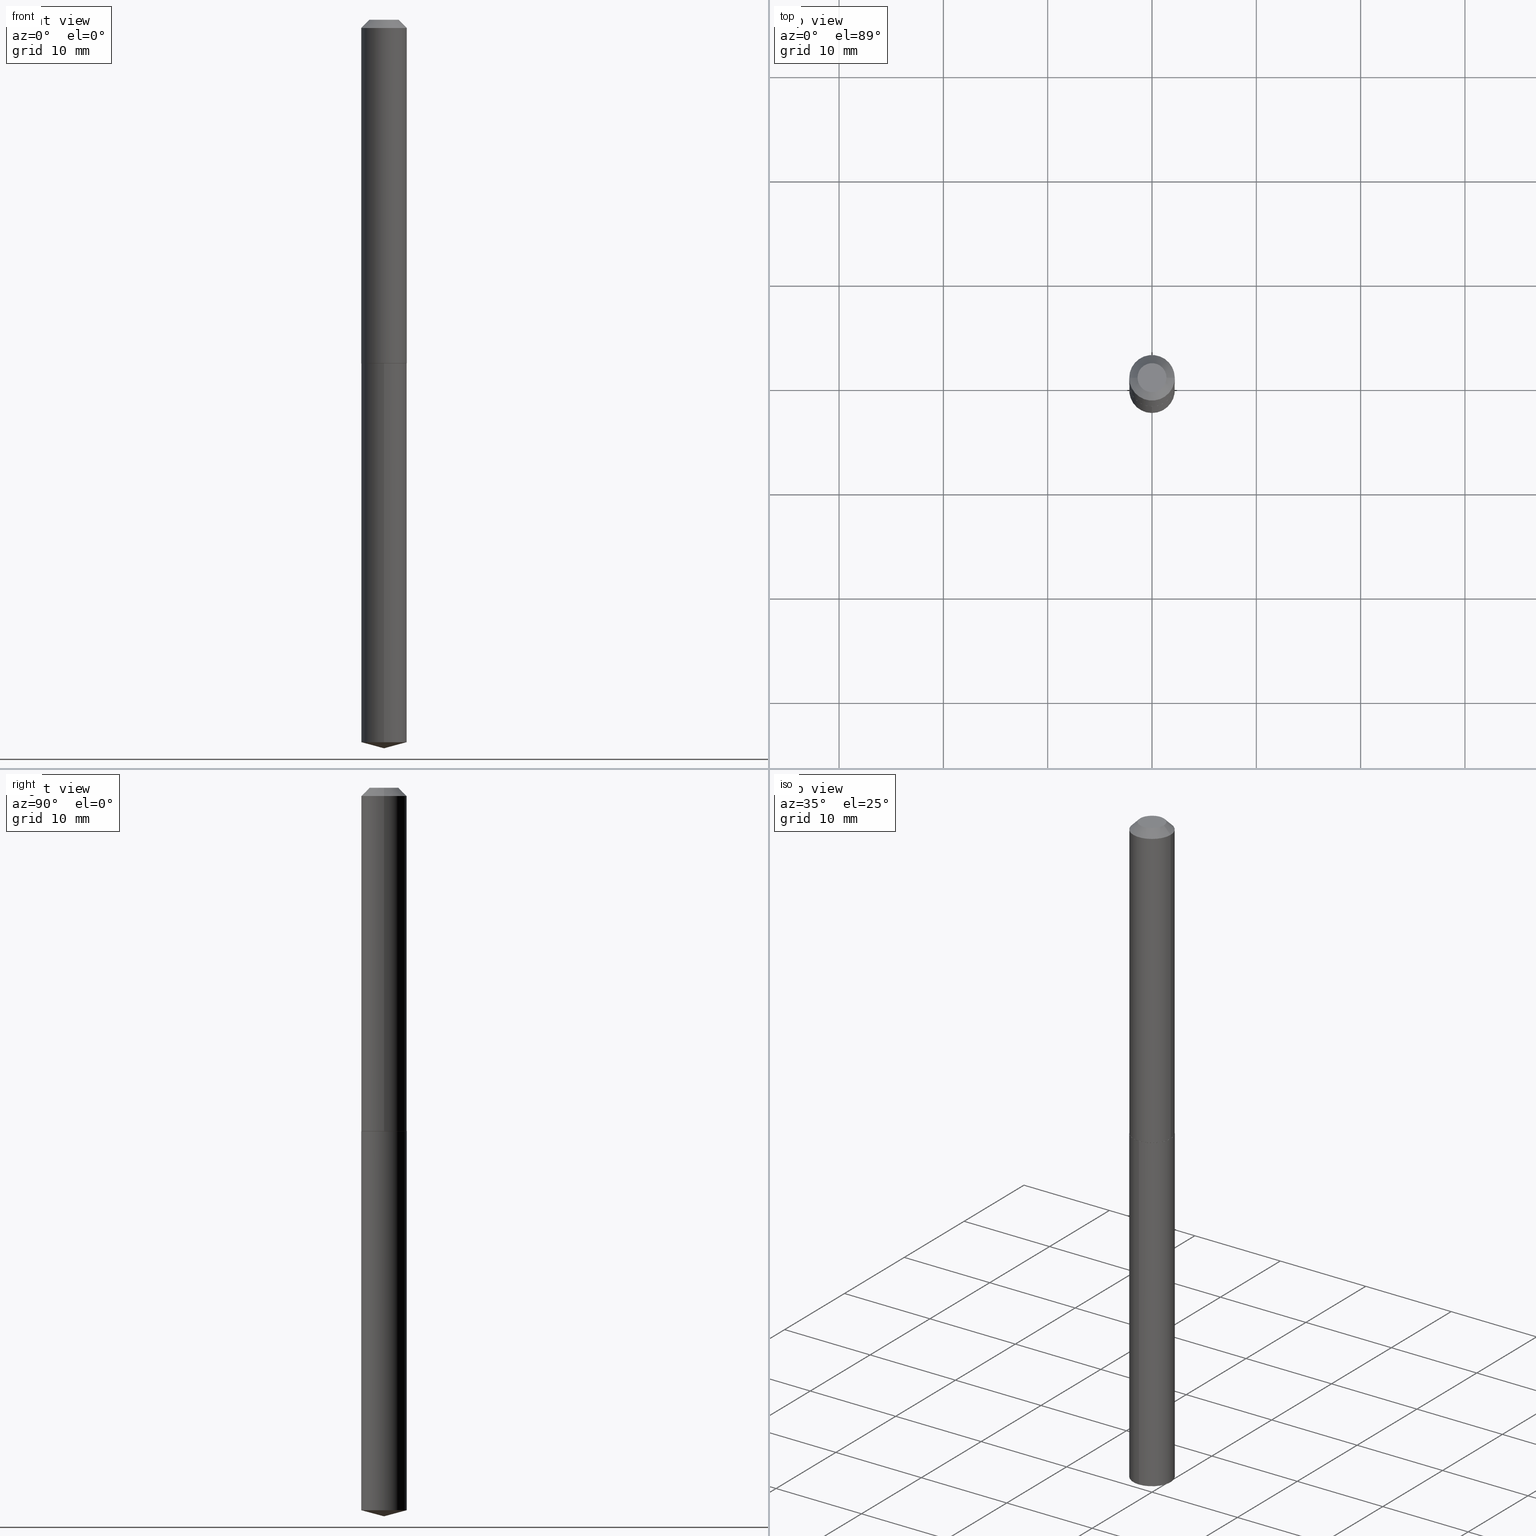
[diagram: canonical four-view strip — front | top / right | iso, engineering-drawing reading convention]
A machine part, canonical four-view strip (front | top / right | iso — engineering-drawing reading convention). The complete STEP part file that produces these views, byte-faithful:
ISO-10303-21;
HEADER;
FILE_DESCRIPTION (( 'STEP AP203' ),
    '1' );
FILE_NAME ('58034.STEP',
    '2024-04-23T00:36:28',
    ( '' ),
    ( '' ),
    'SwSTEP 2.0',
    'SolidWorks 2023',
    '' );
FILE_SCHEMA (( 'CONFIG_CONTROL_DESIGN' ));
ENDSEC;

DATA;
#1 = DIRECTION ( 'NONE',  ( 2.438088387897960049E-29, -3.491481338843145188E-15, -1.000000000000000000 ) ) ;
#2 = ADVANCED_FACE ( 'NONE', ( #254 ), #374, .T. ) ;
#3 = CIRCLE ( 'NONE', #52, 0.08594999999999998475 ) ;
#4 = ORIENTED_EDGE ( 'NONE', *, *, #103, .F. ) ;
#5 = ORIENTED_EDGE ( 'NONE', *, *, #61, .T. ) ;
#6 = DIRECTION ( 'NONE',  ( 6.863315791527699781E-15, 0.9659258262890701996, 0.2588190451025139671 ) ) ;
#7 = DIRECTION ( 'NONE',  ( -1.000000000000000000, 6.982962677686266711E-15, 0.000000000000000000 ) ) ;
#8 = AXIS2_PLACEMENT_3D ( 'NONE', #352, #154, #266 ) ;
#9 = ORIENTED_EDGE ( 'NONE', *, *, #184, .T. ) ;
#10 = VECTOR ( 'NONE', #243, 39.37007874015748854 ) ;
#11 = DATE_TIME_ROLE ( 'classification_date' ) ;
#12 = DIRECTION ( 'NONE',  ( -2.445429851158407502E-29, 3.491537124658603934E-15, 1.000000000000000000 ) ) ;
#13 = DATE_AND_TIME ( #200, #233 ) ;
#14 = CARTESIAN_POINT ( 'NONE',  ( -8.955178318217831204E-28, 1.278604367778051847E-13, 36.62007874015748143 ) ) ;
#15 = PERSON_AND_ORGANIZATION_ROLE ( 'design_owner' ) ;
#16 = EDGE_CURVE ( 'NONE', #219, #246, #297, .T. ) ;
#17 = ORIENTED_EDGE ( 'NONE', *, *, #16, .F. ) ;
#18 = CIRCLE ( 'NONE', #205, 0.08545000000000010920 ) ;
#19 = CONICAL_SURFACE ( 'NONE', #327, 0.08595000000000012352, 0.7853981633978409649 ) ;
#20 = PERSON_AND_ORGANIZATION_ROLE ( 'design_supplier' ) ;
#21 = DIRECTION ( 'NONE',  ( 0.7071067811865452413, -7.319954787623248157E-15, -0.7071067811865497932 ) ) ;
#22 = PERSON_AND_ORGANIZATION ( #88, #321 ) ;
#23 = DESIGN_CONTEXT ( 'detailed design', #204, 'design' ) ;
#24 = EDGE_CURVE ( 'NONE', #247, #129, #258, .T. ) ;
#25 = CLOSED_SHELL ( 'NONE', ( #351, #318, #153, #251, #256, #90, #35, #348 ) ) ;
#26 = CARTESIAN_POINT ( 'NONE',  ( 3.171528494741502879E-29, -4.528102148345674239E-15, -1.296899999999999720 ) ) ;
#27 = DIRECTION ( 'NONE',  ( 1.000000000000000000, -6.982962677686265922E-15, 4.876176775795935793E-29 ) ) ;
#28 = EDGE_CURVE ( 'NONE', #95, #111, #105, .T. ) ;
#29 = VERTEX_POINT ( 'NONE', #312 ) ;
#30 = VECTOR ( 'NONE', #72, 39.37007874015748143 ) ;
#31 = FACE_OUTER_BOUND ( 'NONE', #165, .T. ) ;
#32 = CC_DESIGN_SECURITY_CLASSIFICATION ( #206, ( #140 ) ) ;
#33 = ORIENTED_EDGE ( 'NONE', *, *, #86, .T. ) ;
#34 = CYLINDRICAL_SURFACE ( 'NONE', #367, 0.08594999999999998475 ) ;
#35 = ADVANCED_FACE ( 'NONE', ( #260 ), #76, .T. ) ;
#36 = DIRECTION ( 'NONE',  ( -2.445468806185136597E-29, 3.491481338843145583E-15, 1.000000000000000000 ) ) ;
#37 = CIRCLE ( 'NONE', #44, 0.08545000000000010920 ) ;
#38 = MECHANICAL_CONTEXT ( 'NONE', #302, 'mechanical' ) ;
#39 = VERTEX_POINT ( 'NONE', #230 ) ;
#40 = EDGE_CURVE ( 'NONE', #246, #247, #227, .T. ) ;
#41 = DIRECTION ( 'NONE',  ( 2.445429851158407502E-29, -3.491537124658603539E-15, -1.000000000000000000 ) ) ;
#42 = CARTESIAN_POINT ( 'NONE',  ( -0.08545000000000010920, -3.918294153464556456E-15, -1.296899999999999498 ) ) ;
#43 = ORIENTED_EDGE ( 'NONE', *, *, #294, .F. ) ;
#44 = AXIS2_PLACEMENT_3D ( 'NONE', #249, #104, #275 ) ;
#45 = DIRECTION ( 'NONE',  ( -6.982962677686266711E-15, -1.000000000000000000, 3.178415350394722068E-15 ) ) ;
#46 = EDGE_CURVE ( 'NONE', #269, #81, #368, .T. ) ;
#47 = SECURITY_CLASSIFICATION_LEVEL ( 'unclassified' ) ;
#48 = ORIENTED_EDGE ( 'NONE', *, *, #381, .F. ) ;
#49 = APPROVAL_ROLE ( '' ) ;
#50 = CARTESIAN_POINT ( 'NONE',  ( -3.593802655091171451E-48, 5.130997735076340613E-34, 1.469576158976815732E-19 ) ) ;
#51 = UNCERTAINTY_MEASURE_WITH_UNIT (LENGTH_MEASURE( 1.000000000000000082E-05 ), #66, 'distance_accuracy_value', 'NONE');
#52 = AXIS2_PLACEMENT_3D ( 'NONE', #58, #385, #298 ) ;
#53 = DATE_TIME_ROLE ( 'creation_date' ) ;
#54 = CC_DESIGN_DATE_AND_TIME_ASSIGNMENT ( #13, #53, ( #209 ) ) ;
#55 = COORDINATED_UNIVERSAL_TIME_OFFSET ( 5, 0, .BEHIND. ) ;
#56 = CIRCLE ( 'NONE', #8, 0.08595000000000012352 ) ;
#57 = DIRECTION ( 'NONE',  ( -2.445468806185136597E-29, 3.491481338843145583E-15, 1.000000000000000000 ) ) ;
#58 = CARTESIAN_POINT ( 'NONE',  ( 6.668663791983697040E-29, -9.521243830365720822E-15, -2.726969766910545268 ) ) ;
#59 = ORIENTED_EDGE ( 'NONE', *, *, #146, .F. ) ;
#60 = CARTESIAN_POINT ( 'NONE',  ( 3.170305760338410638E-29, -4.526356407676253525E-15, -1.296399999999999775 ) ) ;
#61 = EDGE_CURVE ( 'NONE', #129, #247, #67, .T. ) ;
#62 = DIRECTION ( 'NONE',  ( -6.982962677686266711E-15, -1.000000000000000000, 3.178415350394722068E-15 ) ) ;
#63 = AXIS2_PLACEMENT_3D ( 'NONE', #370, #309, #126 ) ;
#64 = ORIENTED_EDGE ( 'NONE', *, *, #300, .F. ) ;
#65 = DIRECTION ( 'NONE',  ( -1.000000000000000000, 6.982962677686266711E-15, 0.000000000000000000 ) ) ;
#66 =( CONVERSION_BASED_UNIT ( 'INCH', #189 ) LENGTH_UNIT ( ) NAMED_UNIT ( #306 ) );
#67 = CIRCLE ( 'NONE', #232, 0.08594999999999998475 ) ;
#68 = AXIS2_PLACEMENT_3D ( 'NONE', #132, #36, #333 ) ;
#69 = DIRECTION ( 'NONE',  ( -6.982962677686266711E-15, -1.000000000000000000, 3.178415350394722068E-15 ) ) ;
#70 = PRODUCT_DEFINITION_SHAPE ( 'NONE', 'NONE',  #209 ) ;
#71 = CARTESIAN_POINT ( 'NONE',  ( -0.08595000000000012352, -3.915644926290446044E-15, -1.296399999999999775 ) ) ;
#72 = DIRECTION ( 'NONE',  ( -2.445468806185136877E-29, 3.491481338843145188E-15, 1.000000000000000000 ) ) ;
#73 = PLANE ( 'NONE',  #211 ) ;
#74 = EDGE_LOOP ( 'NONE', ( #141, #314, #4 ) ) ;
#75 = DATE_AND_TIME ( #144, #350 ) ;
#76 = CONICAL_SURFACE ( 'NONE', #341, 0.08594999999999998475, 0.7853981633974450594 ) ;
#77 = EDGE_LOOP ( 'NONE', ( #158, #9, #114, #201 ) ) ;
#78 = LOCAL_TIME ( 20, 36, 28.00000000000000000, #55 ) ;
#79 = ADVANCED_FACE ( 'NONE', ( #308 ), #170, .F. ) ;
#80 = APPROVAL_STATUS ( 'not_yet_approved' ) ;
#81 = VERTEX_POINT ( 'NONE', #138 ) ;
#82 = ADVANCED_FACE ( 'NONE', ( #257 ), #175, .T. ) ;
#83 = DIRECTION ( 'NONE',  ( -2.445468806185136597E-29, 3.491481338843145583E-15, 1.000000000000000000 ) ) ;
#84 = APPROVAL_DATE_TIME ( #346, #112 ) ;
#85 = APPLICATION_PROTOCOL_DEFINITION ( 'international standard', 'config_control_design', 1994, #204 ) ;
#86 = EDGE_CURVE ( 'NONE', #111, #29, #213, .T. ) ;
#87 = MANIFOLD_SOLID_BREP ( 'Body-Move/Copy2[2]', #25 ) ;
#88 = PERSON ( 'UNSPECIFIED', 'UNSPECIFIED', 'UNSPECIFIED', ('UNSPECIFIED'), ('UNSPECIFIED'), ('UNSPECIFIED') ) ;
#89 = CARTESIAN_POINT ( 'NONE',  ( 0.08594999999999998475, -6.987685947473120447E-16, -0.03125000000000020123 ) ) ;
#90 = ADVANCED_FACE ( 'NONE', ( #31 ), #383, .T. ) ;
#91 =( GEOMETRIC_REPRESENTATION_CONTEXT ( 3 ) GLOBAL_UNCERTAINTY_ASSIGNED_CONTEXT ( ( #51 ) ) GLOBAL_UNIT_ASSIGNED_CONTEXT ( ( #66, #220, #331 ) ) REPRESENTATION_CONTEXT ( 'NONE', 'WORKASPACE' ) );
#92 = DIRECTION ( 'NONE',  ( 1.000000000000000000, -6.982962677686262766E-15, 0.000000000000000000 ) ) ;
#93 = CARTESIAN_POINT ( 'NONE',  ( -0.08595000000000005413, 6.107114813858064944E-16, -4.227824710074094392E-30 ) ) ;
#94 = CARTESIAN_POINT ( 'NONE',  ( 7.642090019328600035E-31, -1.091087918388489897E-16, -0.03125000000000020123 ) ) ;
#95 = VERTEX_POINT ( 'NONE', #148 ) ;
#96 = AXIS2_PLACEMENT_3D ( 'NONE', #280, #12, #279 ) ;
#97 = CARTESIAN_POINT ( 'NONE',  ( 6.724932090685620209E-29, -9.601727092811160719E-15, -2.750000000000000000 ) ) ;
#98 = ADVANCED_FACE ( 'NONE', ( #121 ), #384, .T. ) ;
#99 = ORIENTED_EDGE ( 'NONE', *, *, #290, .T. ) ;
#100 = DIRECTION ( 'NONE',  ( -2.445429851158407502E-29, 3.491537124658603539E-15, 1.000000000000000000 ) ) ;
#101 = CARTESIAN_POINT ( 'NONE',  ( 0.000000000000000000, 0.000000000000000000, 0.000000000000000000 ) ) ;
#102 = EDGE_LOOP ( 'NONE', ( #59, #48 ) ) ;
#103 = EDGE_CURVE ( 'NONE', #246, #219, #3, .T. ) ;
#104 = DIRECTION ( 'NONE',  ( -2.445468806185136597E-29, 3.491481338843145583E-15, 1.000000000000000000 ) ) ;
#105 = CIRCLE ( 'NONE', #273, 0.05469999999999999168 ) ;
#106 = PRODUCT_RELATED_PRODUCT_CATEGORY ( 'detail', '', ( #116 ) ) ;
#107 = DIRECTION ( 'NONE',  ( -6.982962677686266711E-15, -1.000000000000000000, 3.510303681827589946E-15 ) ) ;
#108 = FACE_OUTER_BOUND ( 'NONE', #364, .T. ) ;
#109 = DIRECTION ( 'NONE',  ( -2.445429851158407502E-29, 3.491537124658603934E-15, 1.000000000000000000 ) ) ;
#110 = EDGE_CURVE ( 'NONE', #269, #39, #56, .T. ) ;
#111 = VERTEX_POINT ( 'NONE', #180 ) ;
#112 = APPROVAL ( #261, 'UNSPECIFIED' ) ;
#113 = CONICAL_SURFACE ( 'NONE', #361, 0.08595000000000012352, 0.7853981633978409649 ) ;
#114 = ORIENTED_EDGE ( 'NONE', *, *, #300, .T. ) ;
#115 = PERSON_AND_ORGANIZATION ( #88, #321 ) ;
#116 = PRODUCT ( '58034', '58034', '', ( #38 ) ) ;
#117 = DIRECTION ( 'NONE',  ( -0.7071067811865452413, 2.468850131082233000E-15, -0.7071067811865497932 ) ) ;
#118 = PERSON_AND_ORGANIZATION_ROLE ( 'classification_officer' ) ;
#119 = APPROVAL_PERSON_ORGANIZATION ( #281, #137, #49 ) ;
#120 = DIRECTION ( 'NONE',  ( -2.445468806185136597E-29, 3.491481338843145583E-15, 1.000000000000000000 ) ) ;
#121 = FACE_OUTER_BOUND ( 'NONE', #74, .T. ) ;
#122 = AXIS2_PLACEMENT_3D ( 'NONE', #50, #120, #324 ) ;
#123 = DIRECTION ( 'NONE',  ( 1.000000000000000000, -6.982962677686266711E-15, 0.000000000000000000 ) ) ;
#124 = DIRECTION ( 'NONE',  ( 1.000000000000000000, -6.982962677686266711E-15, 4.876176775795936353E-29 ) ) ;
#125 = ORIENTED_EDGE ( 'NONE', *, *, #24, .F. ) ;
#126 = DIRECTION ( 'NONE',  ( 1.000000000000000000, -6.982962677686262766E-15, 0.000000000000000000 ) ) ;
#127 = ADVANCED_FACE ( 'NONE', ( #244 ), #34, .T. ) ;
#128 = CONICAL_SURFACE ( 'NONE', #179, 0.08594999999999998475, 0.7853981633974450594 ) ;
#129 = VERTEX_POINT ( 'NONE', #315 ) ;
#130 = CARTESIAN_POINT ( 'NONE',  ( -1.796901327545585725E-48, 2.565498867538170307E-34, 7.347880794884078658E-20 ) ) ;
#131 = DIRECTION ( 'NONE',  ( -2.445429851158407502E-29, 3.491537124658603539E-15, 1.000000000000000000 ) ) ;
#132 = CARTESIAN_POINT ( 'NONE',  ( 7.642090019328600035E-31, -1.091087918388489897E-16, -0.03125000000000020123 ) ) ;
#133 = CC_DESIGN_APPROVAL ( #360, ( #140 ) ) ;
#134 = ORIENTED_EDGE ( 'NONE', *, *, #16, .T. ) ;
#135 = DIRECTION ( 'NONE',  ( -2.445429851158407502E-29, 3.491537124658603934E-15, 1.000000000000000000 ) ) ;
#136 = CALENDAR_DATE ( 2024, 22, 4 ) ;
#137 = APPROVAL ( #317, 'UNSPECIFIED' ) ;
#138 = CARTESIAN_POINT ( 'NONE',  ( 0.08594999999999998475, -7.092944339859834254E-16, -0.03125000000000020123 ) ) ;
#139 = CALENDAR_DATE ( 2024, 22, 4 ) ;
#140 = PRODUCT_DEFINITION_FORMATION_WITH_SPECIFIED_SOURCE ( 'ANY', '', #116, .NOT_KNOWN. ) ;
#141 = ORIENTED_EDGE ( 'NONE', *, *, #267, .F. ) ;
#142 = APPROVAL_DATE_TIME ( #75, #137 ) ;
#143 = EDGE_CURVE ( 'NONE', #39, #29, #186, .T. ) ;
#144 = CALENDAR_DATE ( 2024, 22, 4 ) ;
#145 = VECTOR ( 'NONE', #21, 39.37007874015748143 ) ;
#146 = EDGE_CURVE ( 'NONE', #389, #328, #18, .T. ) ;
#147 = CARTESIAN_POINT ( 'NONE',  ( 3.171528494741502319E-29, -4.528102148345673450E-15, -1.296899999999999498 ) ) ;
#148 = CARTESIAN_POINT ( 'NONE',  ( 0.05469999999999999168, -5.370189176127073137E-16, 1.469576159008942410E-19 ) ) ;
#149 = DIRECTION ( 'NONE',  ( 1.000000000000000000, -6.982962677686262766E-15, 0.000000000000000000 ) ) ;
#150 = ORIENTED_EDGE ( 'NONE', *, *, #40, .F. ) ;
#151 = DIRECTION ( 'NONE',  ( -2.438088387897960049E-29, 3.491481338843145188E-15, 1.000000000000000000 ) ) ;
#152 = ORIENTED_EDGE ( 'NONE', *, *, #319, .T. ) ;
#153 = ADVANCED_FACE ( 'NONE', ( #322 ), #19, .T. ) ;
#154 = DIRECTION ( 'NONE',  ( -2.445468806185136597E-29, 3.491481338843145583E-15, 1.000000000000000000 ) ) ;
#155 = ORIENTED_EDGE ( 'NONE', *, *, #46, .F. ) ;
#156 = CC_DESIGN_DATE_AND_TIME_ASSIGNMENT ( #375, #11, ( #206 ) ) ;
#157 = LINE ( 'NONE', #253, #380 ) ;
#158 = ORIENTED_EDGE ( 'NONE', *, *, #28, .F. ) ;
#159 = AXIS2_PLACEMENT_3D ( 'NONE', #162, #160, #303 ) ;
#160 = DIRECTION ( 'NONE',  ( -2.445468806185136597E-29, 3.491481338843145583E-15, 1.000000000000000000 ) ) ;
#161 = ORIENTED_EDGE ( 'NONE', *, *, #229, .F. ) ;
#162 = CARTESIAN_POINT ( 'NONE',  ( 0.000000000000000000, 0.000000000000000000, 0.000000000000000000 ) ) ;
#163 = ORIENTED_EDGE ( 'NONE', *, *, #229, .T. ) ;
#164 = DIRECTION ( 'NONE',  ( -1.000000000000000000, 6.982962677686265922E-15, -4.876176775795935793E-29 ) ) ;
#165 = EDGE_LOOP ( 'NONE', ( #285, #152, #332, #234 ) ) ;
#166 = FACE_OUTER_BOUND ( 'NONE', #390, .T. ) ;
#167 = AXIS2_PLACEMENT_3D ( 'NONE', #14, #307, #107 ) ;
#168 = VECTOR ( 'NONE', #193, 39.37007874015748143 ) ;
#169 = EDGE_LOOP ( 'NONE', ( #387, #99, #125, #150 ) ) ;
#170 = PLANE ( 'NONE',  #177 ) ;
#171 = PERSON_AND_ORGANIZATION ( #88, #321 ) ;
#172 = CC_DESIGN_PERSON_AND_ORGANIZATION_ASSIGNMENT ( #344, #259, ( #140 ) ) ;
#173 = ORIENTED_EDGE ( 'NONE', *, *, #278, .T. ) ;
#174 = LOCAL_TIME ( 20, 36, 28.00000000000000000, #238 ) ;
#175 = CYLINDRICAL_SURFACE ( 'NONE', #379, 0.08594999999999998475 ) ;
#176 = APPROVAL_DATE_TIME ( #262, #360 ) ;
#177 = AXIS2_PLACEMENT_3D ( 'NONE', #194, #41, #283 ) ;
#178 = CIRCLE ( 'NONE', #268, 0.08594999999999998475 ) ;
#179 = AXIS2_PLACEMENT_3D ( 'NONE', #228, #195, #65 ) ;
#180 = CARTESIAN_POINT ( 'NONE',  ( -0.05469999999999999168, 4.365224543888621036E-16, 1.469576158948197857E-19 ) ) ;
#181 = FACE_OUTER_BOUND ( 'NONE', #102, .T. ) ;
#182 = EDGE_LOOP ( 'NONE', ( #223, #245, #250, #216 ) ) ;
#183 = DIRECTION ( 'NONE',  ( -2.445468806185136597E-29, 3.491481338843145583E-15, 1.000000000000000000 ) ) ;
#184 = EDGE_CURVE ( 'NONE', #95, #81, #357, .T. ) ;
#185 = AXIS2_PLACEMENT_3D ( 'NONE', #231, #109, #69 ) ;
#186 = LINE ( 'NONE', #93, #252 ) ;
#187 = ORIENTED_EDGE ( 'NONE', *, *, #290, .F. ) ;
#188 = CC_DESIGN_PERSON_AND_ORGANIZATION_ASSIGNMENT ( #207, #349, ( #209 ) ) ;
#189 = LENGTH_MEASURE_WITH_UNIT ( LENGTH_MEASURE( 0.02539999999999999897 ), #272 );
#190 = AXIS2_PLACEMENT_3D ( 'NONE', #240, #151, #27 ) ;
#191 = DIRECTION ( 'NONE',  ( 1.000000000000000000, 0.000000000000000000, 0.000000000000000000 ) ) ;
#192 = DIRECTION ( 'NONE',  ( 2.445468806185136597E-29, -3.491481338843145583E-15, -1.000000000000000000 ) ) ;
#193 = DIRECTION ( 'NONE',  ( 0.7071067811868251285, -2.468850131085164802E-15, 0.7071067811862699060 ) ) ;
#194 = CARTESIAN_POINT ( 'NONE',  ( 3.171528494741502879E-29, -4.528102148345674239E-15, -1.296899999999999720 ) ) ;
#195 = DIRECTION ( 'NONE',  ( 2.445468806185136597E-29, -3.491481338843145583E-15, -1.000000000000000000 ) ) ;
#196 = ORIENTED_EDGE ( 'NONE', *, *, #356, .F. ) ;
#197 = APPROVAL_ROLE ( '' ) ;
#198 = CIRCLE ( 'NONE', #63, 0.08595000000000012352 ) ;
#199 = CARTESIAN_POINT ( 'NONE',  ( -3.593802655091171451E-48, 5.130997735076340613E-34, 1.469576158976815732E-19 ) ) ;
#200 = CALENDAR_DATE ( 2024, 22, 4 ) ;
#201 = ORIENTED_EDGE ( 'NONE', *, *, #86, .F. ) ;
#202 = EDGE_CURVE ( 'NONE', #29, #81, #178, .T. ) ;
#203 = CARTESIAN_POINT ( 'NONE',  ( 0.000000000000000000, 0.000000000000000000, 0.000000000000000000 ) ) ;
#204 = APPLICATION_CONTEXT ( 'configuration controlled 3d designs of mechanical parts and assemblies' ) ;
#205 = AXIS2_PLACEMENT_3D ( 'NONE', #147, #296, #242 ) ;
#206 = SECURITY_CLASSIFICATION ( '', '', #47 ) ;
#207 = PERSON_AND_ORGANIZATION ( #88, #321 ) ;
#208 = CC_DESIGN_PERSON_AND_ORGANIZATION_ASSIGNMENT ( #22, #118, ( #206 ) ) ;
#209 = PRODUCT_DEFINITION ( 'UNKNOWN', '', #140, #23 ) ;
#210 = LINE ( 'NONE', #320, #10 ) ;
#211 = AXIS2_PLACEMENT_3D ( 'NONE', #130, #1, #164 ) ;
#212 = CARTESIAN_POINT ( 'NONE',  ( -6.001856421471028690E-16, -0.08595000000000450890, -1.296899999999999498 ) ) ;
#213 = LINE ( 'NONE', #270, #326 ) ;
#214 = ORIENTED_EDGE ( 'NONE', *, *, #40, .T. ) ;
#215 = PLANE ( 'NONE',  #190 ) ;
#216 = ORIENTED_EDGE ( 'NONE', *, *, #278, .F. ) ;
#217 = VECTOR ( 'NONE', #218, 39.37007874015748143 ) ;
#218 = DIRECTION ( 'NONE',  ( -0.7071067811868251285, 7.493145998871357591E-15, 0.7071067811862699060 ) ) ;
#219 = VERTEX_POINT ( 'NONE', #382 ) ;
#220 =( NAMED_UNIT ( * ) PLANE_ANGLE_UNIT ( ) SI_UNIT ( $, .RADIAN. ) );
#221 = ORIENTED_EDGE ( 'NONE', *, *, #28, .T. ) ;
#222 = DIRECTION ( 'NONE',  ( 0.000000000000000000, 0.000000000000000000, 1.000000000000000000 ) ) ;
#223 = ORIENTED_EDGE ( 'NONE', *, *, #146, .T. ) ;
#224 = AXIS2_PLACEMENT_3D ( 'NONE', #355, #264, #292 ) ;
#225 = CC_DESIGN_APPROVAL ( #112, ( #206 ) ) ;
#226 = CARTESIAN_POINT ( 'NONE',  ( 0.08545000000000010920, -5.124796309153966247E-15, -1.296899999999999498 ) ) ;
#227 = LINE ( 'NONE', #310, #304 ) ;
#228 = CARTESIAN_POINT ( 'NONE',  ( 7.642090019328600035E-31, -1.091087918388489897E-16, -0.03125000000000020123 ) ) ;
#229 = EDGE_CURVE ( 'NONE', #111, #95, #335, .T. ) ;
#230 = CARTESIAN_POINT ( 'NONE',  ( -0.08595000000000012352, -3.915644926290446044E-15, -1.296399999999999775 ) ) ;
#231 = CARTESIAN_POINT ( 'NONE',  ( 3.171528494741502879E-29, -4.528102148345674239E-15, -1.296899999999999720 ) ) ;
#232 = AXIS2_PLACEMENT_3D ( 'NONE', #372, #135, #45 ) ;
#233 = LOCAL_TIME ( 20, 36, 28.00000000000000000, #377 ) ;
#234 = ORIENTED_EDGE ( 'NONE', *, *, #202, .F. ) ;
#235 = COORDINATED_UNIVERSAL_TIME_OFFSET ( 5, 0, .BEHIND. ) ;
#236 = DIRECTION ( 'NONE',  ( -6.982962677686266711E-15, -1.000000000000000000, 3.178415350394722068E-15 ) ) ;
#237 = COORDINATED_UNIVERSAL_TIME_OFFSET ( 5, 0, .BEHIND. ) ;
#238 = COORDINATED_UNIVERSAL_TIME_OFFSET ( 5, 0, .BEHIND. ) ;
#239 = CIRCLE ( 'NONE', #68, 0.08594999999999998475 ) ;
#240 = CARTESIAN_POINT ( 'NONE',  ( 3.171528494741502319E-29, -4.528102148345673450E-15, -1.296899999999999498 ) ) ;
#241 = CC_DESIGN_PERSON_AND_ORGANIZATION_ASSIGNMENT ( #378, #15, ( #116 ) ) ;
#242 = DIRECTION ( 'NONE',  ( 1.000000000000000000, -6.982962677686268288E-15, 0.000000000000000000 ) ) ;
#243 = DIRECTION ( 'NONE',  ( -6.745023994389843077E-15, -0.9659258262890682012, 0.2588190451025206285 ) ) ;
#244 = FACE_OUTER_BOUND ( 'NONE', #169, .T. ) ;
#245 = ORIENTED_EDGE ( 'NONE', *, *, #356, .T. ) ;
#246 = VERTEX_POINT ( 'NONE', #293 ) ;
#247 = VERTEX_POINT ( 'NONE', #212 ) ;
#248 = EDGE_LOOP ( 'NONE', ( #43, #345, #17 ) ) ;
#249 = CARTESIAN_POINT ( 'NONE',  ( 3.171528494741502319E-29, -4.528102148345673450E-15, -1.296899999999999498 ) ) ;
#250 = ORIENTED_EDGE ( 'NONE', *, *, #110, .F. ) ;
#251 = ADVANCED_FACE ( 'NONE', ( #181 ), #215, .F. ) ;
#252 = VECTOR ( 'NONE', #347, 39.37007874015748143 ) ;
#253 = CARTESIAN_POINT ( 'NONE',  ( 6.107114813858375558E-16, 0.08594999999999546059, -1.296899999999999942 ) ) ;
#254 = FACE_OUTER_BOUND ( 'NONE', #248, .T. ) ;
#255 = DIRECTION ( 'NONE',  ( -2.445468806185136597E-29, 3.491481338843145583E-15, 1.000000000000000000 ) ) ;
#256 = ADVANCED_FACE ( 'NONE', ( #325 ), #113, .T. ) ;
#257 = FACE_OUTER_BOUND ( 'NONE', #295, .T. ) ;
#258 = CIRCLE ( 'NONE', #185, 0.08594999999999998475 ) ;
#259 = PERSON_AND_ORGANIZATION_ROLE ( 'creator' ) ;
#260 = FACE_OUTER_BOUND ( 'NONE', #358, .T. ) ;
#261 = APPROVAL_STATUS ( 'not_yet_approved' ) ;
#262 = DATE_AND_TIME ( #139, #78 ) ;
#263 = LOCAL_TIME ( 20, 36, 28.00000000000000000, #235 ) ;
#264 = DIRECTION ( 'NONE',  ( -2.445429851158407502E-29, 3.491537124658603934E-15, 1.000000000000000000 ) ) ;
#265 = DIRECTION ( 'NONE',  ( -2.445429851158407502E-29, 3.491537124658603934E-15, 1.000000000000000000 ) ) ;
#266 = DIRECTION ( 'NONE',  ( 1.000000000000000000, -6.982962677686262766E-15, 0.000000000000000000 ) ) ;
#267 = EDGE_CURVE ( 'NONE', #282, #246, #210, .T. ) ;
#268 = AXIS2_PLACEMENT_3D ( 'NONE', #94, #83, #123 ) ;
#269 = VERTEX_POINT ( 'NONE', #329 ) ;
#270 = CARTESIAN_POINT ( 'NONE',  ( -0.08594999999999998475, 4.910768503082855200E-16, -0.03125000000000020123 ) ) ;
#271 = DIRECTION ( 'NONE',  ( -2.445429851158407502E-29, 3.491537124658603934E-15, 1.000000000000000000 ) ) ;
#272 =( LENGTH_UNIT ( ) NAMED_UNIT ( * ) SI_UNIT ( $, .METRE. ) );
#273 = AXIS2_PLACEMENT_3D ( 'NONE', #199, #255, #376 ) ;
#274 = EDGE_LOOP ( 'NONE', ( #196, #323, #173, #362 ) ) ;
#275 = DIRECTION ( 'NONE',  ( 1.000000000000000000, -6.982962677686268288E-15, 0.000000000000000000 ) ) ;
#276 = ORIENTED_EDGE ( 'NONE', *, *, #143, .T. ) ;
#277 = CYLINDRICAL_SURFACE ( 'NONE', #159, 0.08595000000000005413 ) ;
#278 = EDGE_CURVE ( 'NONE', #389, #269, #366, .T. ) ;
#279 = DIRECTION ( 'NONE',  ( -6.982962677686266711E-15, -1.000000000000000000, 6.356830700789444137E-15 ) ) ;
#280 = CARTESIAN_POINT ( 'NONE',  ( 6.668663791983697040E-29, -9.521243830365720822E-15, -2.726969766910545268 ) ) ;
#281 = PERSON_AND_ORGANIZATION ( #88, #321 ) ;
#282 = VERTEX_POINT ( 'NONE', #97 ) ;
#283 = DIRECTION ( 'NONE',  ( 6.982962677686265922E-15, 1.000000000000000000, -3.491537124658603539E-15 ) ) ;
#284 = CALENDAR_DATE ( 2024, 22, 4 ) ;
#285 = ORIENTED_EDGE ( 'NONE', *, *, #143, .F. ) ;
#286 = ADVANCED_BREP_SHAPE_REPRESENTATION ( '58034', ( #342, #87, #305 ), #91 ) ;
#287 = AXIS2_PLACEMENT_3D ( 'NONE', #203, #388, #124 ) ;
#288 = CARTESIAN_POINT ( 'NONE',  ( 3.171528494741502879E-29, -4.528102148345674239E-15, -1.296899999999999720 ) ) ;
#289 = APPROVAL_ROLE ( '' ) ;
#290 = EDGE_CURVE ( 'NONE', #219, #129, #157, .T. ) ;
#291 = CC_DESIGN_APPROVAL ( #137, ( #209 ) ) ;
#292 = DIRECTION ( 'NONE',  ( -6.982962677686266711E-15, -1.000000000000000000, 3.510303681827589946E-15 ) ) ;
#293 = CARTESIAN_POINT ( 'NONE',  ( -6.001856421470678633E-16, -0.08595000000000954654, -2.726969766910544823 ) ) ;
#294 = EDGE_CURVE ( 'NONE', #282, #219, #365, .T. ) ;
#295 = EDGE_LOOP ( 'NONE', ( #187, #134, #214, #371 ) ) ;
#296 = DIRECTION ( 'NONE',  ( -2.445468806185136597E-29, 3.491481338843145583E-15, 1.000000000000000000 ) ) ;
#297 = CIRCLE ( 'NONE', #96, 0.08594999999999998475 ) ;
#298 = DIRECTION ( 'NONE',  ( -6.982962677686266711E-15, -1.000000000000000000, 6.356830700789444137E-15 ) ) ;
#299 = ORIENTED_EDGE ( 'NONE', *, *, #110, .T. ) ;
#300 = EDGE_CURVE ( 'NONE', #81, #29, #239, .T. ) ;
#301 = LINE ( 'NONE', #71, #217 ) ;
#302 = APPLICATION_CONTEXT ( 'configuration controlled 3d designs of mechanical parts and assemblies' ) ;
#303 = DIRECTION ( 'NONE',  ( 1.000000000000000000, -6.982962677686266711E-15, 4.876176775795936353E-29 ) ) ;
#304 = VECTOR ( 'NONE', #131, 39.37007874015748143 ) ;
#305 = AXIS2_PLACEMENT_3D ( 'NONE', #101, #222, #191 ) ;
#306 = DIMENSIONAL_EXPONENTS ( 1.000000000000000000, 0.000000000000000000, 0.000000000000000000, 0.000000000000000000, 0.000000000000000000, 0.000000000000000000, 0.000000000000000000 ) ;
#307 = DIRECTION ( 'NONE',  ( -2.445429851158407502E-29, 3.491537124658603934E-15, 1.000000000000000000 ) ) ;
#308 = FACE_OUTER_BOUND ( 'NONE', #373, .T. ) ;
#309 = DIRECTION ( 'NONE',  ( -2.445468806185136597E-29, 3.491481338843145583E-15, 1.000000000000000000 ) ) ;
#310 = CARTESIAN_POINT ( 'NONE',  ( -6.001856421471028690E-16, -0.08595000000000450890, -1.296899999999999498 ) ) ;
#311 = SHAPE_DEFINITION_REPRESENTATION ( #70, #286 ) ;
#312 = CARTESIAN_POINT ( 'NONE',  ( -0.08594999999999998475, -1.707021118371743832E-15, -0.03125000000000020123 ) ) ;
#313 = PERSON_AND_ORGANIZATION ( #88, #321 ) ;
#314 = ORIENTED_EDGE ( 'NONE', *, *, #294, .T. ) ;
#315 = CARTESIAN_POINT ( 'NONE',  ( 6.107114813858728573E-16, 0.08594999999999546059, -1.296899999999999942 ) ) ;
#316 = CLOSED_SHELL ( 'NONE', ( #127, #98, #2, #82, #79 ) ) ;
#317 = APPROVAL_STATUS ( 'not_yet_approved' ) ;
#318 = ADVANCED_FACE ( 'NONE', ( #108 ), #277, .T. ) ;
#319 = EDGE_CURVE ( 'NONE', #39, #269, #198, .T. ) ;
#320 = CARTESIAN_POINT ( 'NONE',  ( 6.724932090685620209E-29, -9.601727092811160719E-15, -2.750000000000000000 ) ) ;
#321 = ORGANIZATION ( 'UNSPECIFIED', 'UNSPECIFIED', '' ) ;
#322 = FACE_OUTER_BOUND ( 'NONE', #182, .T. ) ;
#323 = ORIENTED_EDGE ( 'NONE', *, *, #381, .T. ) ;
#324 = DIRECTION ( 'NONE',  ( 1.000000000000000000, -6.982962677686266711E-15, 4.876156802008353939E-29 ) ) ;
#325 = FACE_OUTER_BOUND ( 'NONE', #274, .T. ) ;
#326 = VECTOR ( 'NONE', #117, 39.37007874015748143 ) ;
#327 = AXIS2_PLACEMENT_3D ( 'NONE', #353, #57, #92 ) ;
#328 = VERTEX_POINT ( 'NONE', #42 ) ;
#329 = CARTESIAN_POINT ( 'NONE',  ( 0.08595000000000012352, -5.126542049823388540E-15, -1.296399999999999775 ) ) ;
#330 = ORIENTED_EDGE ( 'NONE', *, *, #202, .T. ) ;
#331 =( NAMED_UNIT ( * ) SI_UNIT ( $, .STERADIAN. ) SOLID_ANGLE_UNIT ( ) );
#332 = ORIENTED_EDGE ( 'NONE', *, *, #46, .T. ) ;
#333 = DIRECTION ( 'NONE',  ( 1.000000000000000000, -6.982962677686266711E-15, 0.000000000000000000 ) ) ;
#334 = CARTESIAN_POINT ( 'NONE',  ( 7.642090019328600035E-31, -1.091087918388489897E-16, -0.03125000000000020123 ) ) ;
#335 = CIRCLE ( 'NONE', #122, 0.05469999999999999168 ) ;
#336 = CARTESIAN_POINT ( 'NONE',  ( 0.08595000000000012352, -5.126542049823388540E-15, -1.296399999999999775 ) ) ;
#337 = CARTESIAN_POINT ( 'NONE',  ( 0.08595000000000005413, -6.001856421471350150E-16, 4.191073938796610043E-30 ) ) ;
#338 = FACE_OUTER_BOUND ( 'NONE', #77, .T. ) ;
#339 = ORIENTED_EDGE ( 'NONE', *, *, #184, .F. ) ;
#340 = ORIENTED_EDGE ( 'NONE', *, *, #24, .T. ) ;
#341 = AXIS2_PLACEMENT_3D ( 'NONE', #334, #192, #7 ) ;
#342 = MANIFOLD_SOLID_BREP ( 'Body-Move/Copy2[1]', #316 ) ;
#343 = VECTOR ( 'NONE', #6, 39.37007874015747433 ) ;
#344 = PERSON_AND_ORGANIZATION ( #88, #321 ) ;
#345 = ORIENTED_EDGE ( 'NONE', *, *, #267, .T. ) ;
#346 = DATE_AND_TIME ( #136, #263 ) ;
#347 = DIRECTION ( 'NONE',  ( -2.445468806185136877E-29, 3.491481338843145188E-15, 1.000000000000000000 ) ) ;
#348 = ADVANCED_FACE ( 'NONE', ( #166 ), #73, .F. ) ;
#349 = PERSON_AND_ORGANIZATION_ROLE ( 'creator' ) ;
#350 = LOCAL_TIME ( 20, 36, 28.00000000000000000, #237 ) ;
#351 = ADVANCED_FACE ( 'NONE', ( #338 ), #128, .T. ) ;
#352 = CARTESIAN_POINT ( 'NONE',  ( 3.170305760338410638E-29, -4.526356407676253525E-15, -1.296399999999999775 ) ) ;
#353 = CARTESIAN_POINT ( 'NONE',  ( 3.170305760338410638E-29, -4.526356407676253525E-15, -1.296399999999999775 ) ) ;
#354 = APPROVAL_PERSON_ORGANIZATION ( #313, #360, #289 ) ;
#355 = CARTESIAN_POINT ( 'NONE',  ( -8.955178318217831204E-28, 1.278604367778051847E-13, 36.62007874015748143 ) ) ;
#356 = EDGE_CURVE ( 'NONE', #328, #39, #301, .T. ) ;
#357 = LINE ( 'NONE', #89, #145 ) ;
#358 = EDGE_LOOP ( 'NONE', ( #339, #161, #33, #330 ) ) ;
#359 = APPLICATION_PROTOCOL_DEFINITION ( 'international standard', 'config_control_design', 1994, #302 ) ;
#360 = APPROVAL ( #80, 'UNSPECIFIED' ) ;
#361 = AXIS2_PLACEMENT_3D ( 'NONE', #60, #183, #149 ) ;
#362 = ORIENTED_EDGE ( 'NONE', *, *, #319, .F. ) ;
#363 = CARTESIAN_POINT ( 'NONE',  ( 6.725034018249058752E-29, -9.601582395563025487E-15, -2.750000000000000000 ) ) ;
#364 = EDGE_LOOP ( 'NONE', ( #299, #276, #64, #155 ) ) ;
#365 = LINE ( 'NONE', #363, #343 ) ;
#366 = LINE ( 'NONE', #336, #168 ) ;
#367 = AXIS2_PLACEMENT_3D ( 'NONE', #288, #265, #236 ) ;
#368 = LINE ( 'NONE', #337, #30 ) ;
#369 = CC_DESIGN_PERSON_AND_ORGANIZATION_ASSIGNMENT ( #171, #20, ( #140 ) ) ;
#370 = CARTESIAN_POINT ( 'NONE',  ( 3.170305760338410638E-29, -4.526356407676253525E-15, -1.296399999999999775 ) ) ;
#371 = ORIENTED_EDGE ( 'NONE', *, *, #61, .F. ) ;
#372 = CARTESIAN_POINT ( 'NONE',  ( 3.171528494741502879E-29, -4.528102148345674239E-15, -1.296899999999999720 ) ) ;
#373 = EDGE_LOOP ( 'NONE', ( #340, #5 ) ) ;
#374 = CONICAL_SURFACE ( 'NONE', #167, 146.9311341562571158, 1.308996938995750758 ) ;
#375 = DATE_AND_TIME ( #284, #174 ) ;
#376 = DIRECTION ( 'NONE',  ( 1.000000000000000000, -6.982962677686266711E-15, 4.876156802008353939E-29 ) ) ;
#377 = COORDINATED_UNIVERSAL_TIME_OFFSET ( 5, 0, .BEHIND. ) ;
#378 = PERSON_AND_ORGANIZATION ( #88, #321 ) ;
#379 = AXIS2_PLACEMENT_3D ( 'NONE', #26, #271, #62 ) ;
#380 = VECTOR ( 'NONE', #100, 39.37007874015748143 ) ;
#381 = EDGE_CURVE ( 'NONE', #328, #389, #37, .T. ) ;
#382 = CARTESIAN_POINT ( 'NONE',  ( 6.107114813858730545E-16, 0.08594999999999047846, -2.726969766910545712 ) ) ;
#383 = CYLINDRICAL_SURFACE ( 'NONE', #287, 0.08595000000000005413 ) ;
#384 = CONICAL_SURFACE ( 'NONE', #224, 146.9311341562571158, 1.308996938995750758 ) ;
#385 = DIRECTION ( 'NONE',  ( -2.445429851158407502E-29, 3.491537124658603934E-15, 1.000000000000000000 ) ) ;
#386 = APPROVAL_PERSON_ORGANIZATION ( #115, #112, #197 ) ;
#387 = ORIENTED_EDGE ( 'NONE', *, *, #103, .T. ) ;
#388 = DIRECTION ( 'NONE',  ( -2.445468806185136597E-29, 3.491481338843145583E-15, 1.000000000000000000 ) ) ;
#389 = VERTEX_POINT ( 'NONE', #226 ) ;
#390 = EDGE_LOOP ( 'NONE', ( #163, #221 ) ) ;
ENDSEC;
END-ISO-10303-21;
